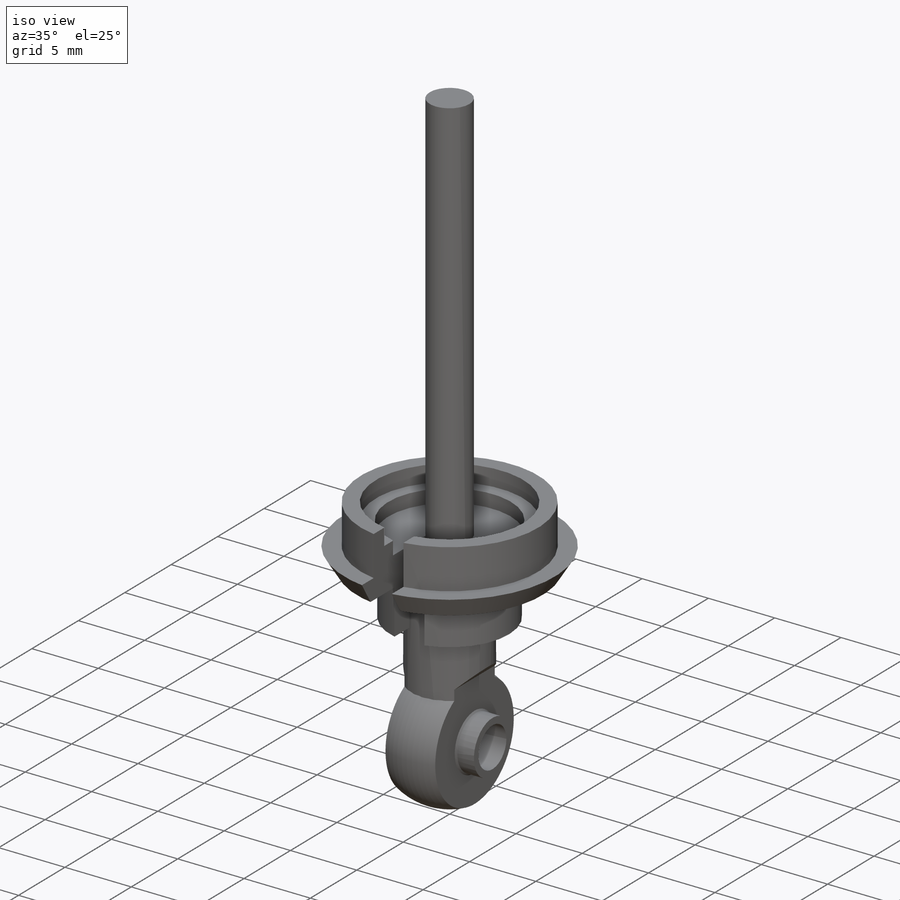
[diagram: iso view]
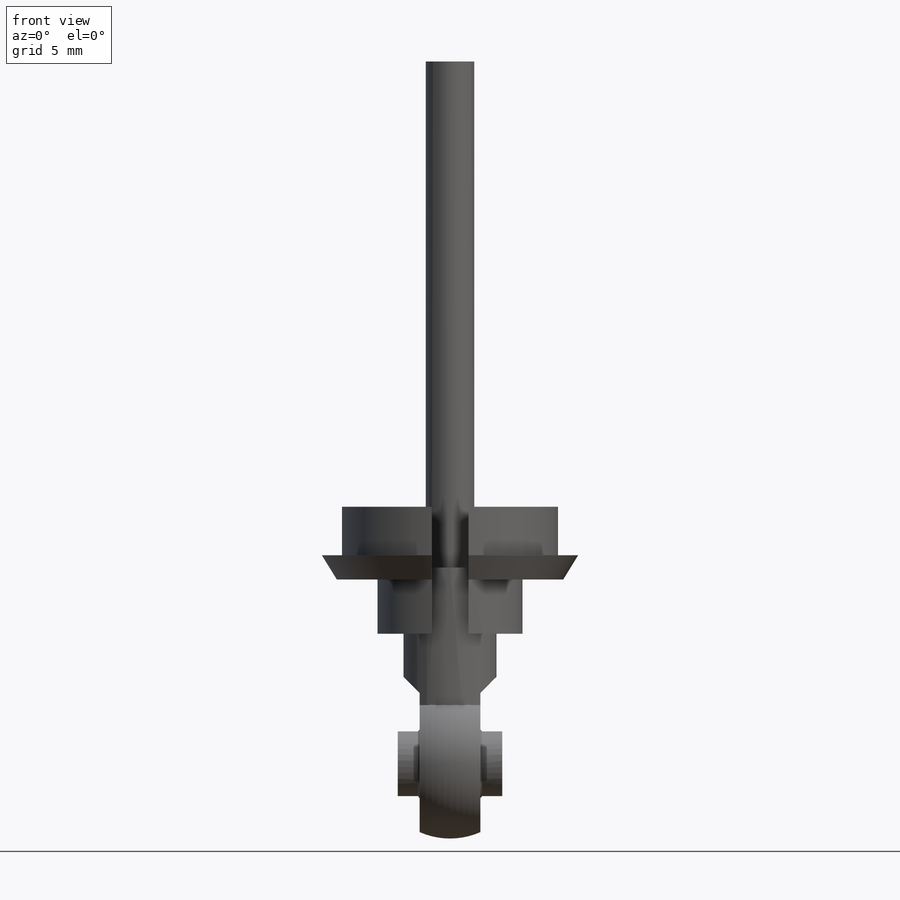
[diagram: front view]
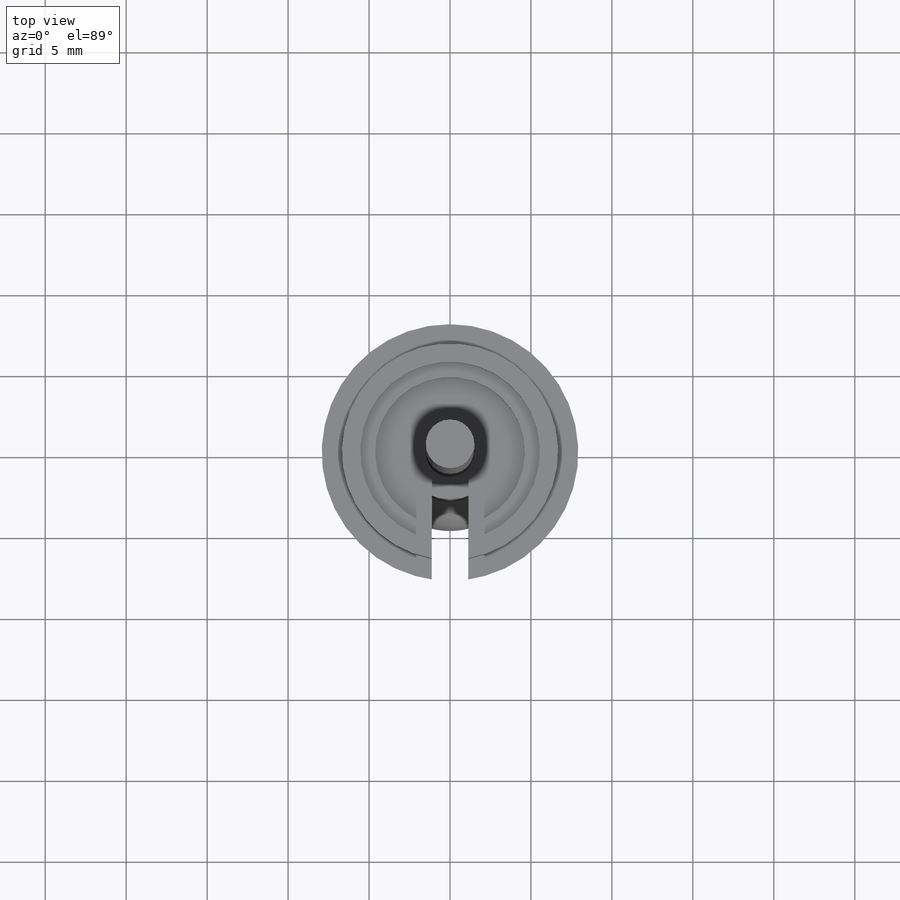
[diagram: top view]
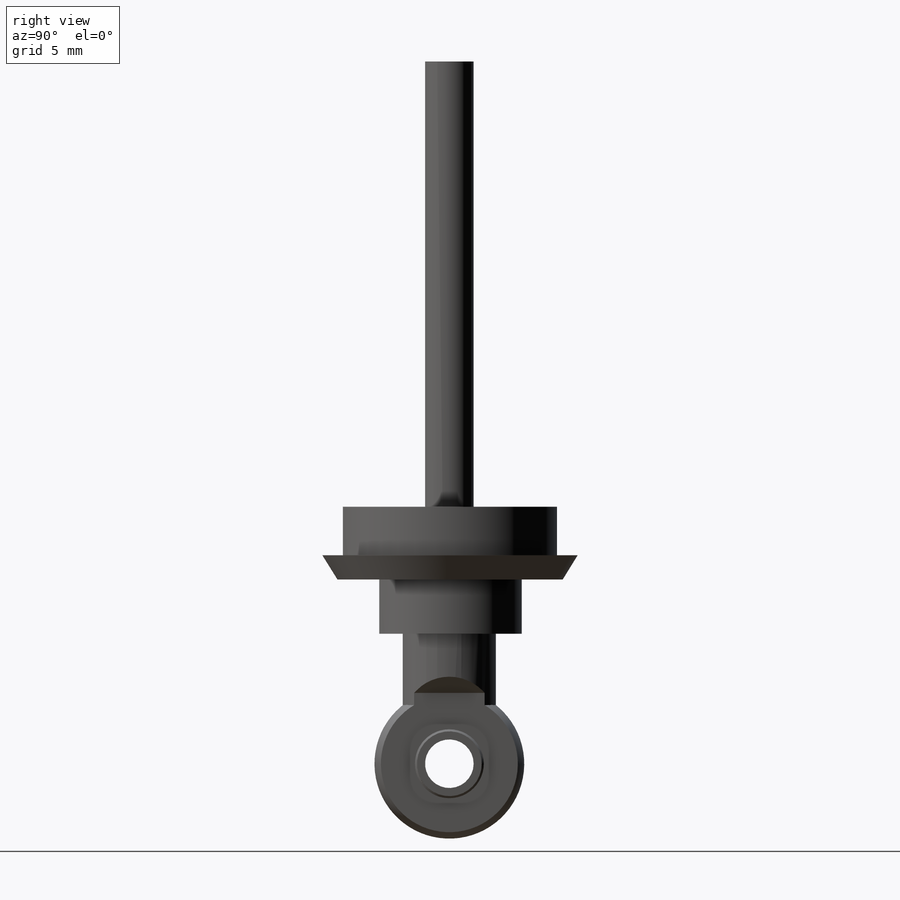
[diagram: right view]
SOLIDWORKS PART (.sldprt)
format: sldprt  version: not decoded by parser v0  size: 471,040 bytes
history: native  units: mm
features: sketch x7, revolve x3, cut_extrude x3, material x1 (+13 scaffold rows collapsed)
feature tree (27):
  scaffold x13  (default folders/planes/origin — collapsed)
  material  "ABS PC"
  sketch  "Sketch1"  dims[c1.D2=5.0mm c1.D3=3.0mm c1.D4=3.0mm c1.D5=9.25mm c1.D9=8.0mm c1.D1=88.0mm c2.D4=0.6mm c2.D6=5.75mm c2.D7=18.0mm c2.D8=9.0mm c2.D10=8.6mm c2.D11=9.8mm c2.D12=8.6mm c3.D11=9.8mm c3.D12=64.0mm c3.D13=8.25mm c4.D12=27.0mm c4.D13=3.0mm c5.D12=30.0mm c5.D14=61.5mm c5.D15=51.0mm c5.D16=14.0mm c5.D17=7.5mm c5.D18=11.95mm c5.D19=21.0mm c5.D20=10.1mm c5.D21=0.5mm c5.D22=3.85mm c5.D23=11.8mm c5.D24=4.5mm c5.D25=35.0mm c5.D26=3.0mm c5.D27=13.8mm c5.D28=5.45mm c5.D29=13.7mm c5.D30=16.95mm c6.D25=42.0mm c6.D15=0.7mm c7.D25=27.0mm c7.D31=51.0mm c7.D14=46.0mm c8.D31=5.75mm c9.D31=~0.216929deg c10.D31=58.0mm c10.D32=15.9mm c10.D35=58.5mm c10.D36=12.8mm]
  sketch  "Sketch2"  dims[D1=4.125mm]
  revolve  "Revolve1"  Angle=360deg
  sketch  "Sketch3"  dims[c1.D5=2.5mm c1.D1=6.46mm c1.D2=3.0mm c1.D3=4.0mm c1.D4=1.25mm c1.D6=8.5mm c1.D7=2.25mm c2.D6=3.75mm]
  revolve  "Spherical Bearing"  Angle=360deg
  sketch  "Sketch4"  dims[D1=9.0mm D2=1.0mm]
  cut_extrude  "Cut-Extrude1"  Depth=10mm
  sketch  "Sketch5"  dims[c1.D1=7.85mm c1.D2=2.36mm c1.D3=4.18mm c1.D4=13.35mm c1.D5=15.85mm c1.D6=14.0mm c1.D7=11.1mm c1.D8=5.9mm c1.D9=1.25mm c1.D10=2.25mm c1.D11=4.0mm c2.D8=5.9mm c2.D12=9.25mm c2.D13=8.95mm c2.D14=9.375mm c2.D11=8.75mm c2.D3=5.49mm c2.D2=5.0mm c3.D3=3.97mm c3.D14=13.75mm c3.D2=12.8mm c4.D3=1.5mm c4.D14=7.85mm c4.D15=3.0mm c5.D14=7.85mm c5.D11=7.85mm c6.D14=~19.424201mm c6.D2=20.5mm]
  revolve  "Revolve3"  Angle=360deg
  sketch  "Sketch6"  dims[D1=2.25mm]
  cut_extrude  "Cut-Extrude2"  Depth=1.51mm
  sketch  "Sketch7"  dims[D1=0.0mm]
  cut_extrude  "Cut-Extrude3"  Depth=6mm
decode coverage: 13 of 13 modeling features carry decoded parameters
note: ~ marks probable driven/reference dimensions
note: suppression state not decoded; provenance and decode notes live in map.json
